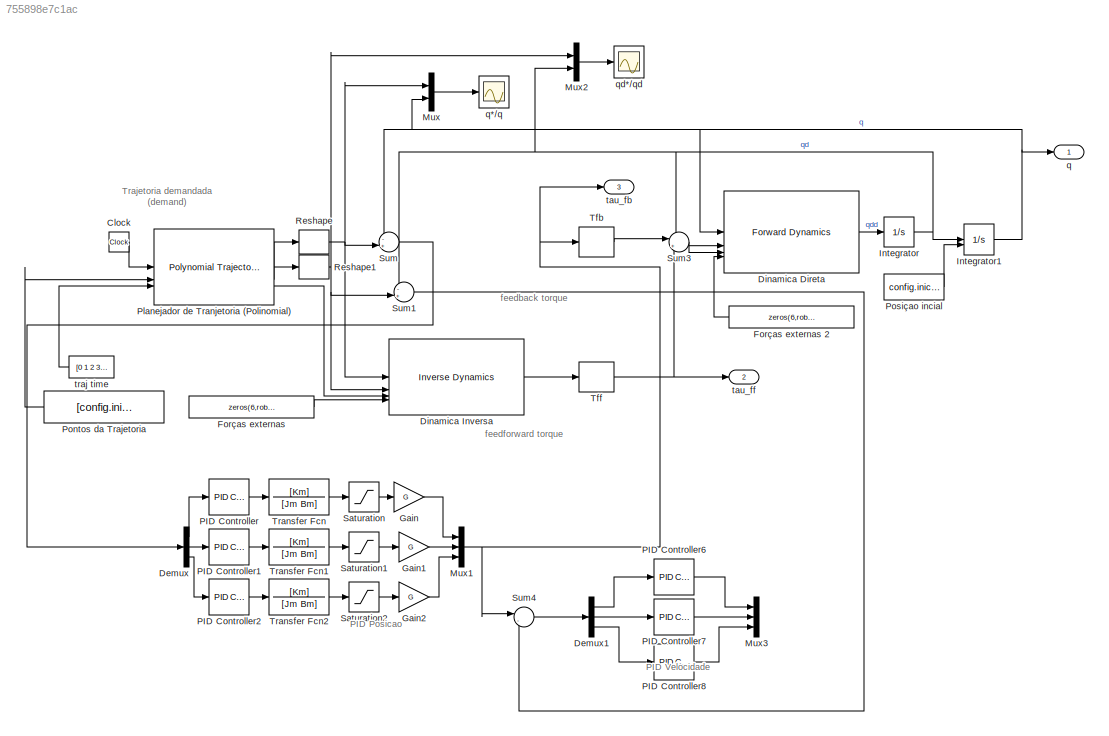
MODEL slx_755898e7c1ac
KIND model
CONFIG AbsTol = auto
CONFIG EnableMultiTasking = on
CONFIG FixedStep = auto
CONFIG InitFcn = if ~exist("ur5", "var")\n   ur5 = loadrobot("universalUR5e", DataFormat="row", Gravity=[0 0 -9.81]);\nend\n\nif ~exist("ur5conf", "var")\n  ur5conf.qn = [0 -1.07 1.38 -0.3 0 -2.3];\n  ur5conf.qe = [0.9765 -0.8013 0.9933 -0.2655 0.8590 -2.2322];\nend\n\nif ~isfield(ur5conf,"qe")\n  ur5conf.qe = [0.9765 -0.8013 0.9933 -0.2655 0.8590 -2.2322];\nend
CONFIG MaxStep = auto
CONFIG MinStep = auto
CONFIG PreLoadFcn = if ~exist("ur5", "var")\n   ur5 = loadrobot("universalUR5e", DataFormat="row", Gravity=[0 0 -9.81]);\nend\n\nif ~exist("ur5conf", "var")\n  ur5conf.qn = [0 -1.07 1.38 -0.3 0 -2.3];\n  ur5conf.qe = [0.9765 -0.8013 0.9933 -0.2655 0.8590 -2.2322];\nend\n\nif ~isfield(ur5conf,"qe")\n  ur5conf.qe = [0.9765 -0.8013 0.9933 -0.2655 0.8590 -2.2322];\nend
CONFIG RelTol = 1e-3
CONFIG SampleTimeConstraint = Unconstrained
CONFIG SolverName = ode23t
CONFIG StartTime = 0.0
CONFIG StopTime = 5
BLOCK [Clock] Clock
  Decimation = 1
BLOCK [Demux] Demux
  Outputs = 3
BLOCK [Demux] Demux1
  Outputs = 3
BLOCK [Reference] Dinamica Direta  REF=robotmaniplib/Forward Dynamics
  SourceBlock = robotmaniplib/Forward Dynamics
  SourceType = Forward Dynamics
BLOCK [Reference] Dinamica Inversa  REF=robotmaniplib/Inverse Dynamics
  SourceBlock = robotmaniplib/Inverse Dynamics
  SourceType = Inverse Dynamics
BLOCK [Constant] Forças externas
  Value = zeros(6,robo.NumBodies)
BLOCK [Constant] Forças externas 2
  Value = zeros(6,robo.NumBodies)
BLOCK [Gain] Gain
  Gain = G
BLOCK [Gain] Gain1
  Gain = G
BLOCK [Gain] Gain2
  Gain = G
BLOCK [Integrator] Integrator
BLOCK [Integrator] Integrator1
  InitialConditionSource = external
BLOCK [Mux] Mux
  DisplayOption = bar
  Inputs = 2
BLOCK [Mux] Mux1
  DisplayOption = bar
  Inputs = 3
BLOCK [Mux] Mux2
  DisplayOption = bar
  Inputs = 2
BLOCK [Mux] Mux3
  DisplayOption = bar
  Inputs = 3
BLOCK [Reference] PID Controller  REF=slpidlib/PID Controller
  LibrarySourceBlock = simulink/Continuous/PID Controller
  SourceBlock = slpidlib/PID Controller
  SourceType = PID 1dof
BLOCK [Reference] PID Controller1  REF=slpidlib/PID Controller
  LibrarySourceBlock = simulink/Continuous/PID Controller
  SourceBlock = slpidlib/PID Controller
  SourceType = PID 1dof
BLOCK [Reference] PID Controller2  REF=slpidlib/PID Controller
  LibrarySourceBlock = simulink/Continuous/PID Controller
  SourceBlock = slpidlib/PID Controller
  SourceType = PID 1dof
BLOCK [Reference] PID Controller6  REF=slpidlib/PID Controller
  LibrarySourceBlock = simulink/Continuous/PID Controller
  SourceBlock = slpidlib/PID Controller
  SourceType = PID 1dof
BLOCK [Reference] PID Controller7  REF=slpidlib/PID Controller
  LibrarySourceBlock = simulink/Continuous/PID Controller
  SourceBlock = slpidlib/PID Controller
  SourceType = PID 1dof
BLOCK [Reference] PID Controller8  REF=slpidlib/PID Controller
  LibrarySourceBlock = simulink/Continuous/PID Controller
  SourceBlock = slpidlib/PID Controller
  SourceType = PID 1dof
BLOCK [Reference] Planejador de Tranjetoria (Polinomial)  REF=robotcorelib/Polynomial Trajectory
  SourceBlock = robotcorelib/Polynomial Trajectory
  SourceType = robotics.slcore.internal.block.PolyTrajSys
BLOCK [Constant] Pontos da Trajetoria
  Value = [config.inicial;\nconfig.lixeira; config.cacamba; config.lixeira; config.inicial]'
  VectorParams1D = off
BLOCK [Constant] Posiçao incial
  Value = config.inicial
BLOCK [Reshape] Reshape
BLOCK [Reshape] Reshape1
BLOCK [Saturate] Saturation
  LowerLimit = -10.28e-3
  UpperLimit = 10.28e-3
BLOCK [Saturate] Saturation1
  LowerLimit = -10.28e-3
  UpperLimit = 10.28e-3
BLOCK [Saturate] Saturation2
  LowerLimit = -10.28e-3
  UpperLimit = 10.28e-3
BLOCK [Sum] Sum
  InputSameDT = on
  Inputs = -+|
  OutDataTypeStr = Inherit: Same as first input
  SaturateOnIntegerOverflow = on
BLOCK [Sum] Sum1
  InputSameDT = on
  Inputs = -+|
  OutDataTypeStr = Inherit: Same as first input
  SaturateOnIntegerOverflow = on
BLOCK [Sum] Sum3
  InputSameDT = on
  Inputs = |++
  OutDataTypeStr = Inherit: Same as first input
  SaturateOnIntegerOverflow = on
BLOCK [Sum] Sum4
  InputSameDT = on
  Inputs = |-+
  OutDataTypeStr = Inherit: Same as first input
  SaturateOnIntegerOverflow = on
BLOCK [ZeroOrderHold] Tfb
  SampleTime = 0.002
BLOCK [ZeroOrderHold] Tff
  SampleTime = 0.01
BLOCK [TransferFcn] Transfer Fcn
  Denominator = [Jm Bm]
  Numerator = [Km]
BLOCK [TransferFcn] Transfer Fcn1
  Denominator = [Jm Bm]
  Numerator = [Km]
BLOCK [TransferFcn] Transfer Fcn2
  Denominator = [Jm Bm]
  Numerator = [Km]
BLOCK [Outport] q
BLOCK [Scope] q*//q
  Floating = off
  NumInputPorts = 1
  ScopeSpecificationString = Simulink.scopes.TimeScopeBlockCfg('CurrentConfiguration', extmgr.ConfigurationSet(extmgr.Configuration('Core','General UI',true),extmgr.Configuration('Core','Source UI',true),extmgr.Configuration('Sources','WiredSimulink',true,'DataLoggingVariableName','ScopeData1'),extmgr.Configuration('Visuals','Time Domain',true,'SerializedDisplays',{struct('MinYLimReal','0.15482','MaxYLimReal','0.5394','YLabel...<+1564ch>
BLOCK [Scope] qd*//qd
  Floating = off
  NumInputPorts = 1
  ScopeSpecificationString = Simulink.scopes.TimeScopeBlockCfg('CurrentConfiguration', extmgr.ConfigurationSet(extmgr.Configuration('Core','General UI',true),extmgr.Configuration('Core','Source UI',true),extmgr.Configuration('Sources','WiredSimulink',true),extmgr.Configuration('Visuals','Time Domain',true,'SerializedDisplays',{struct('MinYLimReal','-14.438','MaxYLimReal','15.07618','YLabelReal','','MinYLimMag','0.00000','MaxY...<+1495ch>
BLOCK [Outport] tau_fb
  Port = 3
BLOCK [Outport] tau_ff
  Port = 2
BLOCK [Constant] traj time
  Value = [0  1  2  3  4]
ANNOTATION (root): PID Posicao
ANNOTATION (root): PID Velocidade
ANNOTATION (root): Trajetoria demandada (demand)
ANNOTATION (root): feedforward torque
ANNOTATION (root): feedback torque
LINE Clock:1 -> Planejador de Tranjetoria (Polinomial):1
LINE Demux1:1 -> PID Controller6:1
LINE Demux1:2 -> PID Controller7:1
LINE Demux1:3 -> PID Controller8:1
LINE Demux:1 -> PID Controller:1
LINE Demux:2 -> PID Controller1:1
LINE Demux:3 -> PID Controller2:1
LINE Dinamica Direta:1 -> Integrator:1
LINE Dinamica Inversa:1 -> Tff:1
LINE Forças externas 2:1 -> Dinamica Direta:4
LINE Forças externas:1 -> Dinamica Inversa:4
LINE Gain1:1 -> Mux1:2
LINE Gain2:1 -> Mux1:3
LINE Gain:1 -> Mux1:1
NET Integrator1:1 -> Dinamica Direta:1, Mux:2, Sum:1, q:1
NET Integrator:1 -> Dinamica Direta:2, Integrator1:1, Mux2:2, Sum1:1
NET Mux1:1 -> Sum4:1, Tfb:1, tau_fb:1
LINE Mux2:1 -> qd*//qd:1
LINE Mux:1 -> q*//q:1
LINE PID Controller1:1 -> Transfer Fcn1:1
LINE PID Controller2:1 -> Transfer Fcn2:1
LINE PID Controller6:1 -> Mux3:1
LINE PID Controller7:1 -> Mux3:2
LINE PID Controller8:1 -> Mux3:3
LINE PID Controller:1 -> Transfer Fcn:1
LINE Planejador de Tranjetoria (Polinomial):1 -> Reshape:1
LINE Planejador de Tranjetoria (Polinomial):2 -> Reshape1:1
LINE Planejador de Tranjetoria (Polinomial):3 -> Dinamica Inversa:3
LINE Pontos da Trajetoria:1 -> Planejador de Tranjetoria (Polinomial):2
LINE Posiçao incial:1 -> Integrator1:2
NET Reshape1:1 -> Dinamica Inversa:2, Mux2:1, Sum1:2
NET Reshape:1 -> Dinamica Inversa:1, Mux:1, Sum:2
LINE Saturation1:1 -> Gain1:1
LINE Saturation2:1 -> Gain2:1
LINE Saturation:1 -> Gain:1
LINE Sum1:1 -> Sum4:2
LINE Sum3:1 -> Dinamica Direta:3
LINE Sum4:1 -> Demux1:1
LINE Sum:1 -> Demux:1
LINE Tfb:1 -> Sum3:1
NET Tff:1 -> Sum3:2, tau_ff:1
LINE Transfer Fcn1:1 -> Saturation1:1
LINE Transfer Fcn2:1 -> Saturation2:1
LINE Transfer Fcn:1 -> Saturation:1
LINE traj time:1 -> Planejador de Tranjetoria (Polinomial):3
note: NET lines group one-source signal fan-out (src -> all destinations, sorted); 1:1 wires keep LINE
